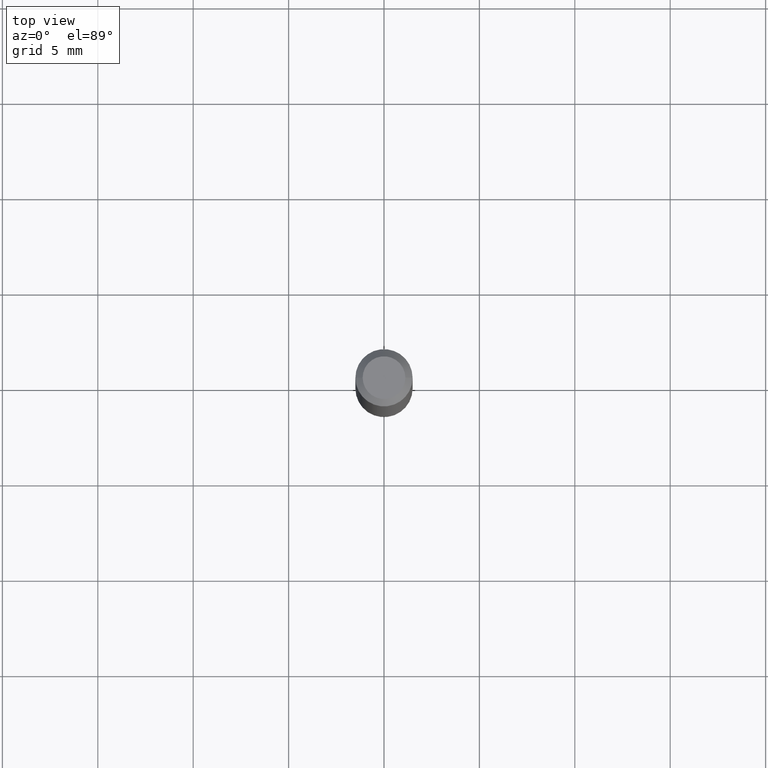
[diagram: clean part render]
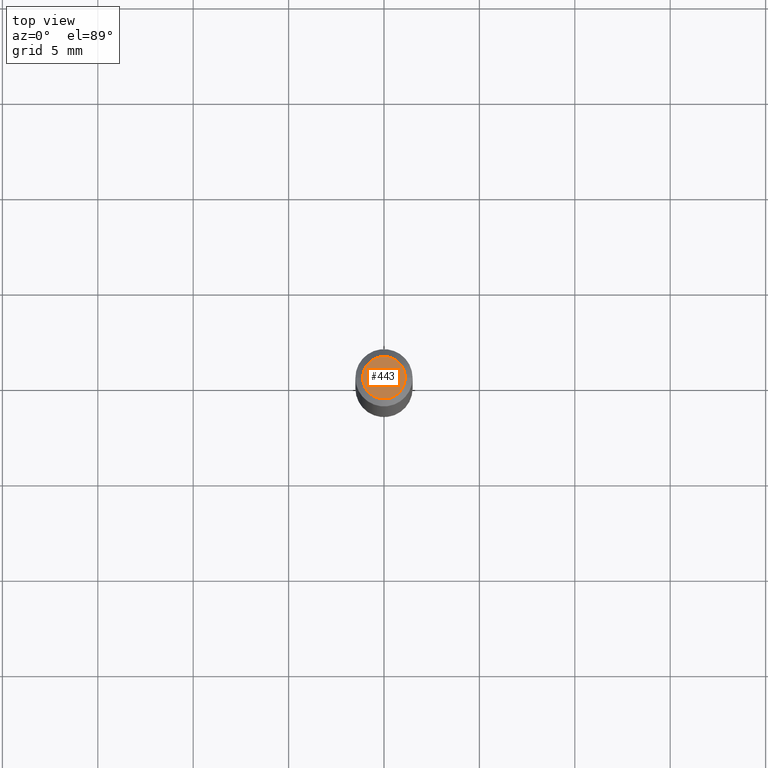
[diagram: same view with one face highlighted and labeled with its STEP entity id]
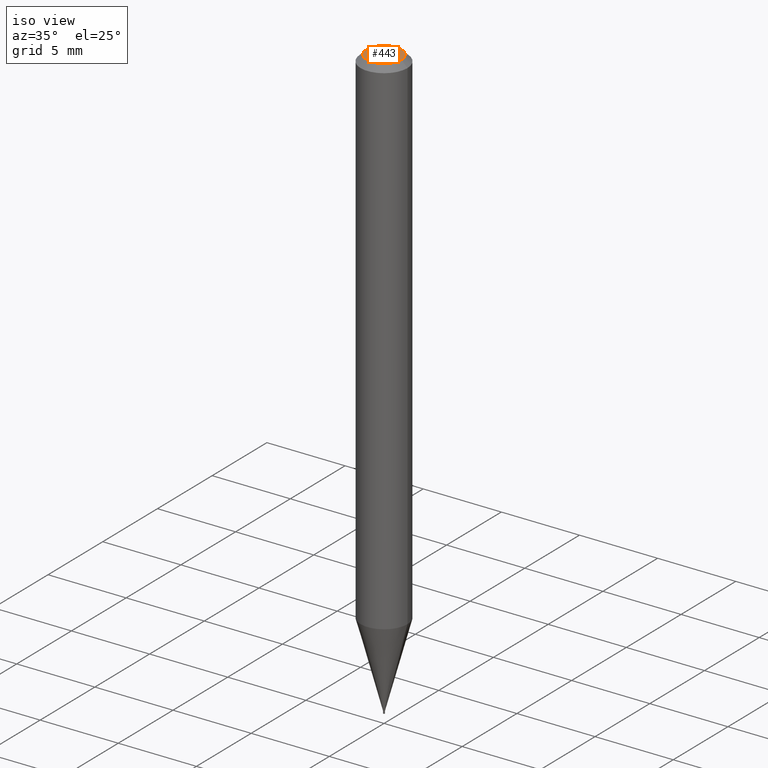
[diagram: same view with one face highlighted and labeled with its STEP entity id]
A machine part, top view. The second image highlights one B-rep face of the part: STEP entity #443.
A second angle (iso view) of the same face is appended — the face is thin or edge-on in the first view.
In plain terms, the highlighted planar face has unit normal (0, -0, -1).
Its self-contained STEP definition (entity closure, byte-faithful):
#22 = EDGE_CURVE ( 'NONE', #191, #79, #316, .T. ) ;
#26 = CARTESIAN_POINT ( 'NONE',  ( 3.075995059520799729E-16, 0.04404999999999999888, 5.390572357118808327E-16 ) ) ;
#44 = DIRECTION ( 'NONE',  ( 1.000000000000000000, -6.982962677686265922E-15, 4.957392940945096353E-29 ) ) ;
#56 = AXIS2_PLACEMENT_3D ( 'NONE', #85, #122, #228 ) ;
#61 = PLANE ( 'NONE',  #405 ) ;
#70 = ORIENTED_EDGE ( 'NONE', *, *, #466, .T. ) ;
#79 = VERTEX_POINT ( 'NONE', #230 ) ;
#85 = CARTESIAN_POINT ( 'NONE',  ( -3.388720305967359121E-44, 4.838194492981867643E-30, 1.385713977375842822E-15 ) ) ;
#95 = CARTESIAN_POINT ( 'NONE',  ( -0.04404999999999999888, 3.337856159934058298E-16, 1.385713977375840652E-15 ) ) ;
#122 = DIRECTION ( 'NONE',  ( -2.445468806185136597E-29, 3.491481338843145583E-15, 1.000000000000000000 ) ) ;
#131 = ORIENTED_EDGE ( 'NONE', *, *, #22, .T. ) ;
#141 = CARTESIAN_POINT ( 'NONE',  ( -3.388720305967359121E-44, 4.838194492981867643E-30, 1.385713977375842822E-15 ) ) ;
#170 = DIRECTION ( 'NONE',  ( 2.438088387897960049E-29, -3.491481338843145188E-15, -1.000000000000000000 ) ) ;
#172 = AXIS2_PLACEMENT_3D ( 'NONE', #141, #363, #44 ) ;
#191 = VERTEX_POINT ( 'NONE', #95 ) ;
#228 = DIRECTION ( 'NONE',  ( 1.000000000000000000, -6.982962677686265922E-15, 4.957392940945096353E-29 ) ) ;
#230 = CARTESIAN_POINT ( 'NONE',  ( 0.04404999999999999888, -3.798447818264435920E-16, 1.385713977375845188E-15 ) ) ;
#278 = CIRCLE ( 'NONE', #172, 0.04404999999999999888 ) ;
#298 = FACE_OUTER_BOUND ( 'NONE', #462, .T. ) ;
#316 = CIRCLE ( 'NONE', #56, 0.04404999999999999888 ) ;
#363 = DIRECTION ( 'NONE',  ( -2.445468806185136597E-29, 3.491481338843145583E-15, 1.000000000000000000 ) ) ;
#405 = AXIS2_PLACEMENT_3D ( 'NONE', #26, #170, #442 ) ;
#442 = DIRECTION ( 'NONE',  ( -1.000000000000000000, 6.982962677686265922E-15, -4.876176775795935793E-29 ) ) ;
#443 = ADVANCED_FACE ( 'NONE', ( #298 ), #61, .F. ) ;
#462 = EDGE_LOOP ( 'NONE', ( #131, #70 ) ) ;
#466 = EDGE_CURVE ( 'NONE', #79, #191, #278, .T. ) ;